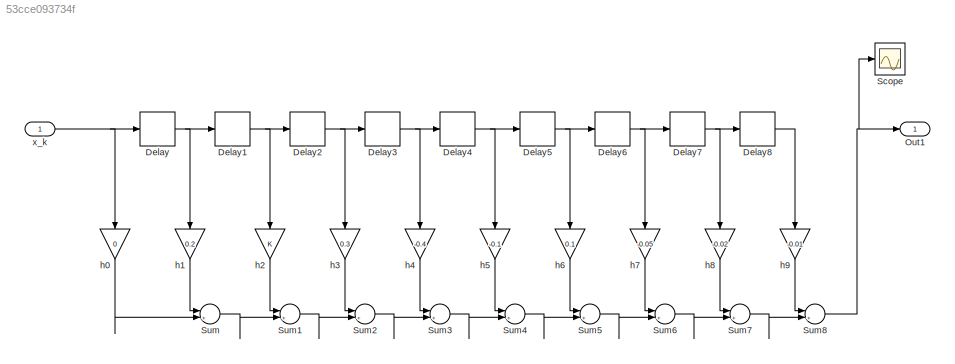
MODEL slx_53cce093734f
KIND model
CONFIG AbsTol = auto
CONFIG FixedStep = auto
CONFIG MaxStep = auto
CONFIG MinStep = auto
CONFIG RelTol = 1e-3
CONFIG SampleTimeConstraint = Unconstrained
CONFIG Solver = ode45
CONFIG SolverMode = Auto
CONFIG SolverName = ode45
CONFIG StartTime = 0.0
CONFIG StopTime = 1
BLOCK [Delay] Delay
  DelayLength = 1
  InputPortMap = u0
  Ports = [1, 1]
  SampleTime = T
BLOCK [Delay] Delay1
  DelayLength = 1
  InputPortMap = u0
  Ports = [1, 1]
  SampleTime = T
BLOCK [Delay] Delay2
  DelayLength = 1
  InputPortMap = u0
  Ports = [1, 1]
  SampleTime = T
BLOCK [Delay] Delay3
  DelayLength = 1
  InputPortMap = u0
  Ports = [1, 1]
  SampleTime = T
BLOCK [Delay] Delay4
  DelayLength = 1
  InputPortMap = u0
  Ports = [1, 1]
  SampleTime = T
BLOCK [Delay] Delay5
  DelayLength = 1
  InputPortMap = u0
  Ports = [1, 1]
  SampleTime = T
BLOCK [Delay] Delay6
  DelayLength = 1
  InputPortMap = u0
  Ports = [1, 1]
  SampleTime = T
BLOCK [Delay] Delay7
  DelayLength = 1
  InputPortMap = u0
  Ports = [1, 1]
  SampleTime = T
BLOCK [Delay] Delay8
  DelayLength = 1
  InputPortMap = u0
  Ports = [1, 1]
  SampleTime = T
BLOCK [Outport] Out1
  IconDisplay = Port number
BLOCK [Scope] Scope
  Floating = off
  NumInputPorts = 1
  Ports = [1]
  ShowLegends = off
BLOCK [Sum] Sum
  IconShape = round
  InputSameDT = off
  Inputs = |++
  OutDataTypeStr = Inherit: Inherit via internal rule
  Ports = [2, 1]
  SaturateOnIntegerOverflow = off
BLOCK [Sum] Sum1
  IconShape = round
  InputSameDT = off
  Inputs = |++
  OutDataTypeStr = Inherit: Inherit via internal rule
  Ports = [2, 1]
  SaturateOnIntegerOverflow = off
BLOCK [Sum] Sum2
  IconShape = round
  InputSameDT = off
  Inputs = |++
  OutDataTypeStr = Inherit: Inherit via internal rule
  Ports = [2, 1]
  SaturateOnIntegerOverflow = off
BLOCK [Sum] Sum3
  IconShape = round
  InputSameDT = off
  Inputs = |++
  OutDataTypeStr = Inherit: Inherit via internal rule
  Ports = [2, 1]
  SaturateOnIntegerOverflow = off
BLOCK [Sum] Sum4
  IconShape = round
  InputSameDT = off
  Inputs = |++
  OutDataTypeStr = Inherit: Inherit via internal rule
  Ports = [2, 1]
  SaturateOnIntegerOverflow = off
BLOCK [Sum] Sum5
  IconShape = round
  InputSameDT = off
  Inputs = |++
  OutDataTypeStr = Inherit: Inherit via internal rule
  Ports = [2, 1]
  SaturateOnIntegerOverflow = off
BLOCK [Sum] Sum6
  IconShape = round
  InputSameDT = off
  Inputs = |++
  OutDataTypeStr = Inherit: Inherit via internal rule
  Ports = [2, 1]
  SaturateOnIntegerOverflow = off
BLOCK [Sum] Sum7
  IconShape = round
  InputSameDT = off
  Inputs = |++
  OutDataTypeStr = Inherit: Inherit via internal rule
  Ports = [2, 1]
  SaturateOnIntegerOverflow = off
BLOCK [Sum] Sum8
  IconShape = round
  InputSameDT = off
  Inputs = |++
  OutDataTypeStr = Inherit: Inherit via internal rule
  Ports = [2, 1]
  SaturateOnIntegerOverflow = off
BLOCK [Gain] h0
  Gain = 0
  OutDataTypeStr = Inherit: Inherit via internal rule
  ParamDataTypeStr = Inherit: Inherit via internal rule
  SaturateOnIntegerOverflow = off
BLOCK [Gain] h1
  Gain = 0.2
  OutDataTypeStr = Inherit: Inherit via internal rule
  ParamDataTypeStr = Inherit: Inherit via internal rule
  SaturateOnIntegerOverflow = off
BLOCK [Gain] h2
  OutDataTypeStr = Inherit: Inherit via internal rule
  ParamDataTypeStr = Inherit: Inherit via internal rule
  SaturateOnIntegerOverflow = off
BLOCK [Gain] h3
  Gain = 0.3
  OutDataTypeStr = Inherit: Inherit via internal rule
  ParamDataTypeStr = Inherit: Inherit via internal rule
  SaturateOnIntegerOverflow = off
BLOCK [Gain] h4
  Gain = -0.4
  OutDataTypeStr = Inherit: Inherit via internal rule
  ParamDataTypeStr = Inherit: Inherit via internal rule
  SaturateOnIntegerOverflow = off
BLOCK [Gain] h5
  Gain = -0.1
  OutDataTypeStr = Inherit: Inherit via internal rule
  ParamDataTypeStr = Inherit: Inherit via internal rule
  SaturateOnIntegerOverflow = off
BLOCK [Gain] h6
  Gain = 0.1
  OutDataTypeStr = Inherit: Inherit via internal rule
  ParamDataTypeStr = Inherit: Inherit via internal rule
  SaturateOnIntegerOverflow = off
BLOCK [Gain] h7
  Gain = -0.05
  OutDataTypeStr = Inherit: Inherit via internal rule
  ParamDataTypeStr = Inherit: Inherit via internal rule
  SaturateOnIntegerOverflow = off
BLOCK [Gain] h8
  Gain = -0.02
  OutDataTypeStr = Inherit: Inherit via internal rule
  ParamDataTypeStr = Inherit: Inherit via internal rule
  SaturateOnIntegerOverflow = off
BLOCK [Gain] h9
  Gain = -0.01
  OutDataTypeStr = Inherit: Inherit via internal rule
  ParamDataTypeStr = Inherit: Inherit via internal rule
  SaturateOnIntegerOverflow = off
BLOCK [Inport] x_k
  IconDisplay = Port number
NET Delay1:1 -> Delay2:1, h2:1
NET Delay2:1 -> Delay3:1, h3:1
NET Delay3:1 -> Delay4:1, h4:1
NET Delay4:1 -> Delay5:1, h5:1
NET Delay5:1 -> Delay6:1, h6:1
NET Delay6:1 -> Delay7:1, h7:1
NET Delay7:1 -> Delay8:1, h8:1
LINE Delay8:1 -> h9:1
NET Delay:1 -> Delay1:1, h1:1
LINE Sum1:1 -> Sum2:2
LINE Sum2:1 -> Sum3:2
LINE Sum3:1 -> Sum4:2
LINE Sum4:1 -> Sum5:2
LINE Sum5:1 -> Sum6:2
LINE Sum6:1 -> Sum7:2
LINE Sum7:1 -> Sum8:2
NET Sum8:1 -> Out1:1, Scope:1
LINE Sum:1 -> Sum1:2
LINE h0:1 -> Sum:2
LINE h1:1 -> Sum:1
LINE h2:1 -> Sum1:1
LINE h3:1 -> Sum2:1
LINE h4:1 -> Sum3:1
LINE h5:1 -> Sum4:1
LINE h6:1 -> Sum5:1
LINE h7:1 -> Sum6:1
LINE h8:1 -> Sum7:1
LINE h9:1 -> Sum8:1
NET x_k:1 -> Delay:1, h0:1
note: NET lines group one-source signal fan-out (src -> all destinations, sorted); 1:1 wires keep LINE
